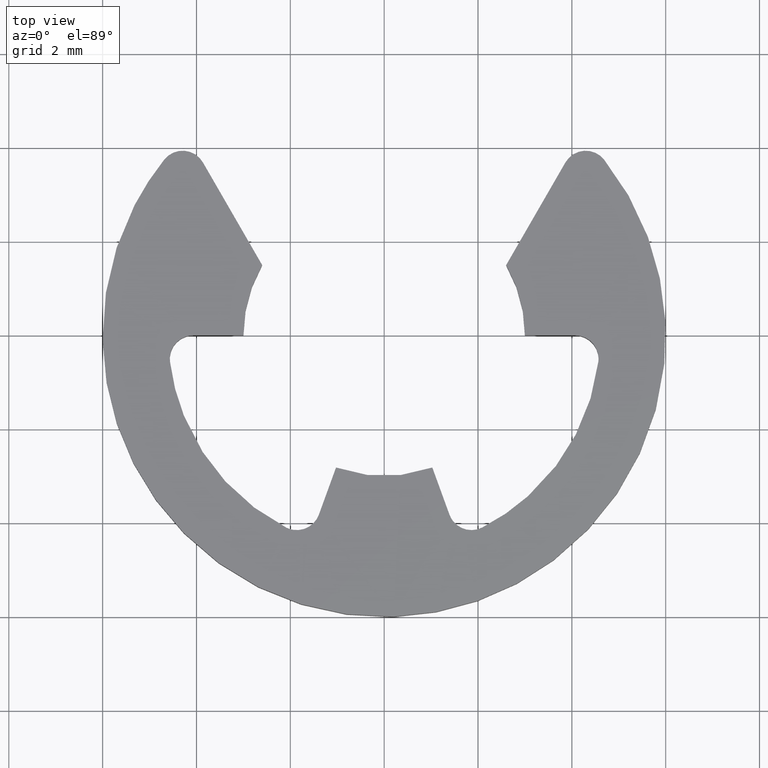
[diagram: clean part render]
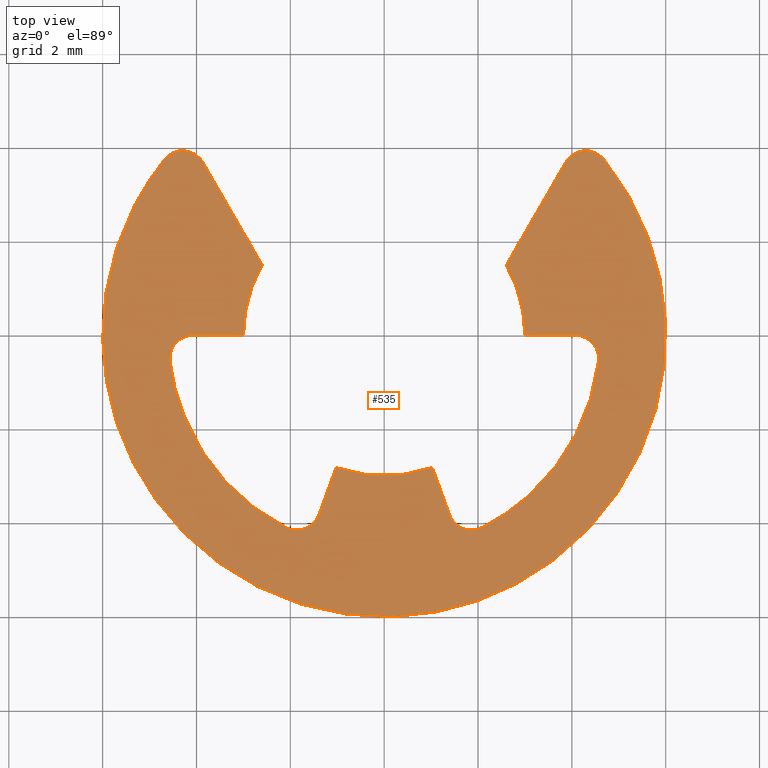
[diagram: same view with one face highlighted and labeled with its STEP entity id]
A machine part, top view. The second image highlights one B-rep face of the part: STEP entity #535.
In plain terms, the highlighted face is a freeform B-spline surface patch.
Its self-contained STEP definition (entity closure, byte-faithful):
#290=CARTESIAN_POINT('',(-6.581331910933198,-6.496215426562749,0.799987999999900));
#291=CARTESIAN_POINT('',(6.581332656440507,-6.496215426562750,0.799987999999900));
#292=CARTESIAN_POINT('',(-6.581331910933198,4.430458852543654,0.799987999999900));
#293=CARTESIAN_POINT('',(6.581332656440507,4.430458852543654,0.799987999999900));
#294=B_SPLINE_SURFACE_WITH_KNOTS('',1,1,((#290,#292),(#291,#293)),.UNSPECIFIED.,.F.,.F.,.U.,(2,2),(2,2),(0.0,13.162664567373710),(0.0,10.926674279106400),.UNSPECIFIED.);
#295=CARTESIAN_POINT('',(3.863010000000000,3.684273000000000,0.799987999999918));
#296=VERTEX_POINT('',#295);
#297=CARTESIAN_POINT('',(4.686570576171150,3.746472505513260,0.799987999999918));
#298=VERTEX_POINT('',#297);
#299=CARTESIAN_POINT('',(3.863010000000000,3.684273000000000,0.799987999999918));
#300=CARTESIAN_POINT('',(3.995044526100701,3.912964423524880,0.799987999999918));
#301=CARTESIAN_POINT('',(4.258364277141856,3.932851677456801,0.799987999999918));
#302=CARTESIAN_POINT('',(4.521684028183013,3.952738931388722,0.799987999999918));
#303=CARTESIAN_POINT('',(4.686570576171150,3.746472505513260,0.799987999999918));
#311=(BOUNDED_CURVE()B_SPLINE_CURVE(2,(#299,#300,#301,#302,#303),.UNSPECIFIED.,.F.,.U.)B_SPLINE_CURVE_WITH_KNOTS((3,2,3),(0.0,0.500000000000000,1.0),.UNSPECIFIED.)CURVE()GEOMETRIC_REPRESENTATION_ITEM()RATIONAL_B_SPLINE_CURVE((1.0,0.884252020448958,1.0,0.884252020448958,1.0))REPRESENTATION_ITEM(''));
#312=EDGE_CURVE('',#296,#298,#311,.T.);
#313=ORIENTED_EDGE('',*,*,#312,.F.);
#314=CARTESIAN_POINT('',(2.599998350847290,1.496665819610834,0.799987999999918));
#315=VERTEX_POINT('',#314);
#316=CARTESIAN_POINT('',(2.599998350847290,1.496665819610834,0.799987999999918));
#317=CARTESIAN_POINT('',(3.863010000000000,3.684273000000000,0.799987999999918));
#318=QUASI_UNIFORM_CURVE('',1,(#316,#317),.UNSPECIFIED.,.F.,.U.);
#319=EDGE_CURVE('',#315,#296,#318,.T.);
#320=ORIENTED_EDGE('',*,*,#319,.F.);
#321=CARTESIAN_POINT('',(3.0,0.0,0.799987999999918));
#322=VERTEX_POINT('',#321);
#323=CARTESIAN_POINT('',(2.599998350847290,1.496665819610836,0.799987999999918));
#324=CARTESIAN_POINT('',(3.000000000000000,0.801785496624863,0.799987999999918));
#325=CARTESIAN_POINT('',(3.0,0.0,0.799987999999918));
#333=(BOUNDED_CURVE()B_SPLINE_CURVE(2,(#323,#324,#325),.UNSPECIFIED.,.F.,.U.)CURVE()GEOMETRIC_REPRESENTATION_ITEM()QUASI_UNIFORM_CURVE()RATIONAL_B_SPLINE_CURVE((1.0,0.966091640826350,1.0))REPRESENTATION_ITEM(''));
#334=EDGE_CURVE('',#315,#322,#333,.T.);
#335=ORIENTED_EDGE('',*,*,#334,.T.);
#336=CARTESIAN_POINT('',(4.069397157079631,-2.464695E-014,0.799987999999918));
#337=VERTEX_POINT('',#336);
#338=CARTESIAN_POINT('',(4.069397157079631,-2.464695E-014,0.799987999999918));
#339=CARTESIAN_POINT('',(3.0,0.0,0.799987999999918));
#340=QUASI_UNIFORM_CURVE('',1,(#338,#339),.UNSPECIFIED.,.F.,.U.);
#341=EDGE_CURVE('',#337,#322,#340,.T.);
#342=ORIENTED_EDGE('',*,*,#341,.F.);
#343=CARTESIAN_POINT('',(4.565665992471750,-0.560975975588001,0.799987999999918));
#344=VERTEX_POINT('',#343);
#345=CARTESIAN_POINT('',(4.069397157079631,-2.461139E-014,0.799987999999918));
#346=CARTESIAN_POINT('',(4.294643165169120,-0.000000070763144,0.799987999999918));
#347=CARTESIAN_POINT('',(4.443888659346118,-0.168705573424196,0.799987999999918));
#348=CARTESIAN_POINT('',(4.593134153523118,-0.337411076085247,0.799987999999918));
#349=CARTESIAN_POINT('',(4.565665992471750,-0.560975975588001,0.799987999999918));
#357=(BOUNDED_CURVE()B_SPLINE_CURVE(2,(#345,#346,#347,#348,#349),.UNSPECIFIED.,.F.,.U.)B_SPLINE_CURVE_WITH_KNOTS((3,2,3),(0.0,0.500000000000000,1.0),.UNSPECIFIED.)CURVE()GEOMETRIC_REPRESENTATION_ITEM()RATIONAL_B_SPLINE_CURVE((1.0,0.911753554545202,1.0,0.911753554545202,1.0))REPRESENTATION_ITEM(''));
#358=EDGE_CURVE('',#337,#344,#357,.T.);
#359=ORIENTED_EDGE('',*,*,#358,.T.);
#360=CARTESIAN_POINT('',(2.088695450060575,-4.098452796061555,0.799987999999918));
#361=VERTEX_POINT('',#360);
#362=CARTESIAN_POINT('',(4.565665992471750,-0.560975975588001,0.799987999999918));
#363=CARTESIAN_POINT('',(4.267448520479672,-2.988096558573858,0.799987999999918));
#364=CARTESIAN_POINT('',(2.088695450060575,-4.098452796061555,0.799987999999918));
#372=(BOUNDED_CURVE()B_SPLINE_CURVE(2,(#362,#363,#364),.UNSPECIFIED.,.F.,.U.)CURVE()GEOMETRIC_REPRESENTATION_ITEM()QUASI_UNIFORM_CURVE()RATIONAL_B_SPLINE_CURVE((1.0,0.882986498269924,1.0))REPRESENTATION_ITEM(''));
#373=EDGE_CURVE('',#344,#361,#372,.T.);
#374=ORIENTED_EDGE('',*,*,#373,.T.);
#375=CARTESIAN_POINT('',(1.391815000000000,-3.823982000000000,0.799987999999918));
#376=VERTEX_POINT('',#375);
#377=CARTESIAN_POINT('',(2.088695450060575,-4.098452796061555,0.799987999999918));
#378=CARTESIAN_POINT('',(1.888008509862501,-4.200729531546816,0.799987999999918));
#379=CARTESIAN_POINT('',(1.678431727553087,-4.118186383333256,0.799987999999918));
#380=CARTESIAN_POINT('',(1.468854945243672,-4.035643235119693,0.799987999999918));
#381=CARTESIAN_POINT('',(1.391815000000000,-3.823982000000000,0.799987999999918));
#389=(BOUNDED_CURVE()B_SPLINE_CURVE(2,(#377,#378,#379,#380,#381),.UNSPECIFIED.,.F.,.U.)B_SPLINE_CURVE_WITH_KNOTS((3,2,3),(0.0,0.500000000000000,1.0),.UNSPECIFIED.)CURVE()GEOMETRIC_REPRESENTATION_ITEM()RATIONAL_B_SPLINE_CURVE((1.0,0.911753755466187,1.0,0.911753755466187,1.0))REPRESENTATION_ITEM(''));
#390=EDGE_CURVE('',#361,#376,#389,.T.);
#391=ORIENTED_EDGE('',*,*,#390,.T.);
#392=CARTESIAN_POINT('',(1.026058412686930,-2.819078596590450,0.799987999999918));
#393=VERTEX_POINT('',#392);
#394=CARTESIAN_POINT('',(1.026058412686930,-2.819078596590450,0.799987999999918));
#395=CARTESIAN_POINT('',(1.391815000000000,-3.823982000000000,0.799987999999918));
#396=QUASI_UNIFORM_CURVE('',1,(#394,#395),.UNSPECIFIED.,.F.,.U.);
#397=EDGE_CURVE('',#393,#376,#396,.T.);
#398=ORIENTED_EDGE('',*,*,#397,.F.);
#399=CARTESIAN_POINT('',(-1.026060000000012,-2.819076000000000,0.799987999999918));
#400=VERTEX_POINT('',#399);
#401=CARTESIAN_POINT('',(1.026058412686930,-2.819078596590450,0.799987999999918));
#402=CARTESIAN_POINT('',(-0.000000941773228,-3.192532055437769,0.799987999999918));
#403=CARTESIAN_POINT('',(-1.026060000000012,-2.819076000000000,0.799987999999918));
#411=(BOUNDED_CURVE()B_SPLINE_CURVE(2,(#401,#402,#403),.UNSPECIFIED.,.F.,.U.)CURVE()GEOMETRIC_REPRESENTATION_ITEM()QUASI_UNIFORM_CURVE()RATIONAL_B_SPLINE_CURVE((1.0,0.939692729881005,1.0))REPRESENTATION_ITEM(''));
#412=EDGE_CURVE('',#393,#400,#411,.T.);
#413=ORIENTED_EDGE('',*,*,#412,.T.);
#414=CARTESIAN_POINT('',(-1.391817958012584,-3.823983127035450,0.799987999999918));
#415=VERTEX_POINT('',#414);
#416=CARTESIAN_POINT('',(-1.391817958012584,-3.823983127035450,0.799987999999918));
#417=CARTESIAN_POINT('',(-1.026060000000012,-2.819076000000000,0.799987999999918));
#418=QUASI_UNIFORM_CURVE('',1,(#416,#417),.UNSPECIFIED.,.F.,.U.);
#419=EDGE_CURVE('',#415,#400,#418,.T.);
#420=ORIENTED_EDGE('',*,*,#419,.F.);
#421=CARTESIAN_POINT('',(-2.088696213768935,-4.098456798184810,0.799987999999918));
#422=VERTEX_POINT('',#421);
#423=CARTESIAN_POINT('',(-1.391817958012584,-3.823983127035450,0.799987999999918));
#424=CARTESIAN_POINT('',(-1.468856879404417,-4.035644854333030,0.799987999999918));
#425=CARTESIAN_POINT('',(-1.678433037067881,-4.118188881075313,0.799987999999918));
#426=CARTESIAN_POINT('',(-1.888009194731345,-4.200732907817598,0.799987999999918));
#427=CARTESIAN_POINT('',(-2.088696213768936,-4.098456798184811,0.799987999999918));
#435=(BOUNDED_CURVE()B_SPLINE_CURVE(2,(#423,#424,#425,#426,#427),.UNSPECIFIED.,.F.,.U.)B_SPLINE_CURVE_WITH_KNOTS((3,2,3),(0.0,0.500000000000000,1.0),.UNSPECIFIED.)CURVE()GEOMETRIC_REPRESENTATION_ITEM()RATIONAL_B_SPLINE_CURVE((1.0,0.911753678768537,1.0,0.911753678768537,1.0))REPRESENTATION_ITEM(''));
#436=EDGE_CURVE('',#415,#422,#435,.T.);
#437=ORIENTED_EDGE('',*,*,#436,.T.);
#438=CARTESIAN_POINT('',(-4.565665037338840,-0.560975692827991,0.799987999999918));
#439=VERTEX_POINT('',#438);
#440=CARTESIAN_POINT('',(-2.088696213768935,-4.098456798184815,0.799987999999918));
#441=CARTESIAN_POINT('',(-4.267449413650987,-2.988098977322558,0.799987999999918));
#442=CARTESIAN_POINT('',(-4.565665037338840,-0.560975692827991,0.799987999999918));
#450=(BOUNDED_CURVE()B_SPLINE_CURVE(2,(#440,#441,#442),.UNSPECIFIED.,.F.,.U.)CURVE()GEOMETRIC_REPRESENTATION_ITEM()QUASI_UNIFORM_CURVE()RATIONAL_B_SPLINE_CURVE((1.0,0.882986431893304,1.0))REPRESENTATION_ITEM(''));
#451=EDGE_CURVE('',#422,#439,#450,.T.);
#452=ORIENTED_EDGE('',*,*,#451,.T.);
#453=CARTESIAN_POINT('',(-4.069397000000000,0.0,0.799987999999918));
#454=VERTEX_POINT('',#453);
#455=CARTESIAN_POINT('',(-4.565665037338842,-0.560975692827991,0.799987999999918));
#456=CARTESIAN_POINT('',(-4.593134099878816,-0.337410906238256,0.799987999999918));
#457=CARTESIAN_POINT('',(-4.443888552918084,-0.168705453119128,0.799987999999918));
#458=CARTESIAN_POINT('',(-4.294643005957350,0.0,0.799987999999918));
#459=CARTESIAN_POINT('',(-4.069397000000000,0.0,0.799987999999918));
#467=(BOUNDED_CURVE()B_SPLINE_CURVE(2,(#455,#456,#457,#458,#459),.UNSPECIFIED.,.F.,.U.)B_SPLINE_CURVE_WITH_KNOTS((3,2,3),(0.0,0.500000000000000,1.0),.UNSPECIFIED.)CURVE()GEOMETRIC_REPRESENTATION_ITEM()RATIONAL_B_SPLINE_CURVE((1.0,0.911753556001221,1.0,0.911753556001221,1.0))REPRESENTATION_ITEM(''));
#468=EDGE_CURVE('',#439,#454,#467,.T.);
#469=ORIENTED_EDGE('',*,*,#468,.T.);
#470=CARTESIAN_POINT('',(-2.999999999999780,-0.000001151917306,0.799987999999918));
#471=VERTEX_POINT('',#470);
#472=CARTESIAN_POINT('',(-2.999999999999780,-0.000001151917306,0.799987999999918));
#473=CARTESIAN_POINT('',(-4.069397000000000,0.0,0.799987999999918));
#474=QUASI_UNIFORM_CURVE('',1,(#472,#473),.UNSPECIFIED.,.F.,.U.);
#475=EDGE_CURVE('',#471,#454,#474,.T.);
#476=ORIENTED_EDGE('',*,*,#475,.F.);
#477=CARTESIAN_POINT('',(-2.599997000000000,1.496666000000000,0.799987999999918));
#478=VERTEX_POINT('',#477);
#479=CARTESIAN_POINT('',(-2.999999999999780,-0.000001151917306,0.799987999999918));
#480=CARTESIAN_POINT('',(-2.999999839543698,0.801785137004089,0.799987999999918));
#481=CARTESIAN_POINT('',(-2.599997000000000,1.496666000000000,0.799987999999918));
#489=(BOUNDED_CURVE()B_SPLINE_CURVE(2,(#479,#480,#481),.UNSPECIFIED.,.F.,.U.)CURVE()GEOMETRIC_REPRESENTATION_ITEM()QUASI_UNIFORM_CURVE()RATIONAL_B_SPLINE_CURVE((1.0,0.966091555526800,1.0))REPRESENTATION_ITEM(''));
#490=EDGE_CURVE('',#471,#478,#489,.T.);
#491=ORIENTED_EDGE('',*,*,#490,.T.);
#492=CARTESIAN_POINT('',(-3.863011481367470,3.684265317414915,0.799987999999918));
#493=VERTEX_POINT('',#492);
#494=CARTESIAN_POINT('',(-3.863011481367470,3.684265317414915,0.799987999999918));
#495=CARTESIAN_POINT('',(-2.599997000000000,1.496666000000000,0.799987999999918));
#496=QUASI_UNIFORM_CURVE('',1,(#494,#495),.UNSPECIFIED.,.F.,.U.);
#497=EDGE_CURVE('',#493,#478,#496,.T.);
#498=ORIENTED_EDGE('',*,*,#497,.F.);
#499=CARTESIAN_POINT('',(-4.686575545676350,3.746466289007340,0.799987999999918));
#500=VERTEX_POINT('',#499);
#501=CARTESIAN_POINT('',(-4.686575545676350,3.746466289007340,0.799987999999918));
#502=CARTESIAN_POINT('',(-4.521688937545055,3.952732709392030,0.799987999999918));
#503=CARTESIAN_POINT('',(-4.258368013302476,3.932845010295169,0.799987999999918));
#504=CARTESIAN_POINT('',(-3.995047089059899,3.912957311198309,0.799987999999918));
#505=CARTESIAN_POINT('',(-3.863011481367468,3.684265317414917,0.799987999999918));
#513=(BOUNDED_CURVE()B_SPLINE_CURVE(2,(#501,#502,#503,#504,#505),.UNSPECIFIED.,.F.,.U.)B_SPLINE_CURVE_WITH_KNOTS((3,2,3),(0.0,0.500000000000000,1.0),.UNSPECIFIED.)CURVE()GEOMETRIC_REPRESENTATION_ITEM()RATIONAL_B_SPLINE_CURVE((1.0,0.884251858320853,1.0,0.884251858320853,1.0))REPRESENTATION_ITEM(''));
#514=EDGE_CURVE('',#500,#493,#513,.T.);
#515=ORIENTED_EDGE('',*,*,#514,.F.);
#516=CARTESIAN_POINT('',(4.686570576171150,3.746472505513261,0.799987999999918));
#517=CARTESIAN_POINT('',(8.165531267817840,-0.605459822599134,0.799987999999918));
#518=CARTESIAN_POINT('',(4.082768349135098,-4.396703606942442,0.799987999999918));
#519=CARTESIAN_POINT('',(0.000005430452355,-8.187947391285750,0.799987999999918));
#520=CARTESIAN_POINT('',(-4.082762517122990,-4.396709022527594,0.799987999999918));
#521=CARTESIAN_POINT('',(-8.165530464698330,-0.605470653769442,0.799987999999918));
#522=CARTESIAN_POINT('',(-4.686575545676352,3.746466289007337,0.799987999999918));
#530=(BOUNDED_CURVE()B_SPLINE_CURVE(2,(#516,#517,#518,#519,#520,#521,#522),.UNSPECIFIED.,.F.,.U.)B_SPLINE_CURVE_WITH_KNOTS((3,2,2,3),(0.0,0.333333333333333,0.666666666666667,1.0),.UNSPECIFIED.)CURVE()GEOMETRIC_REPRESENTATION_ITEM()RATIONAL_B_SPLINE_CURVE((1.0,0.732784385789331,1.0,0.732784385789331,1.0,0.732784385789331,1.0))REPRESENTATION_ITEM(''));
#531=EDGE_CURVE('',#298,#500,#530,.T.);
#532=ORIENTED_EDGE('',*,*,#531,.F.);
#533=EDGE_LOOP('',(#313,#320,#335,#342,#359,#374,#391,#398,#413,#420,#437,#452,#469,#476,#491,#498,#515,#532));
#534=FACE_OUTER_BOUND('',#533,.T.);
#535=ADVANCED_FACE('',(#534),#294,.T.);